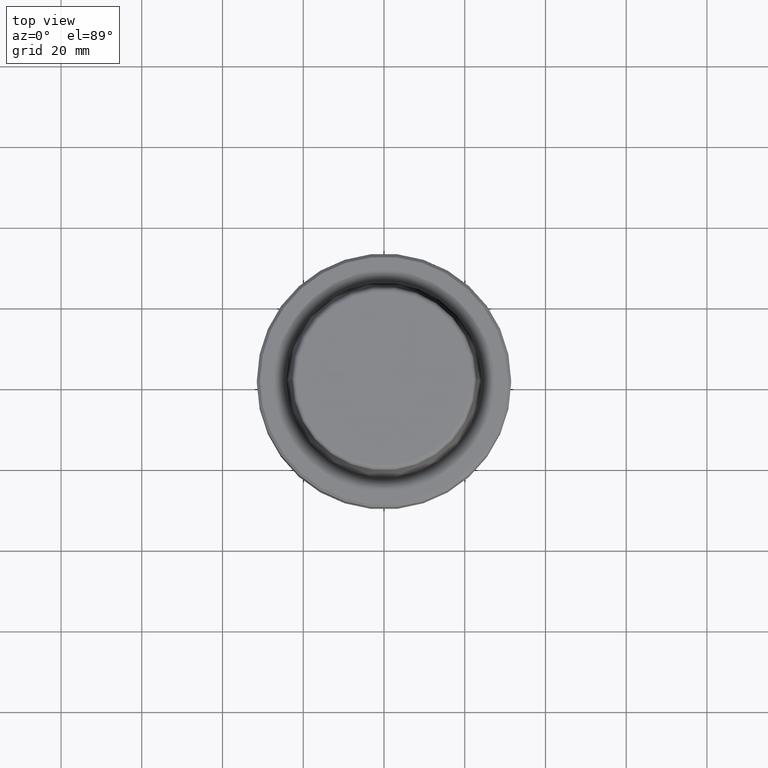
[diagram: clean part render]
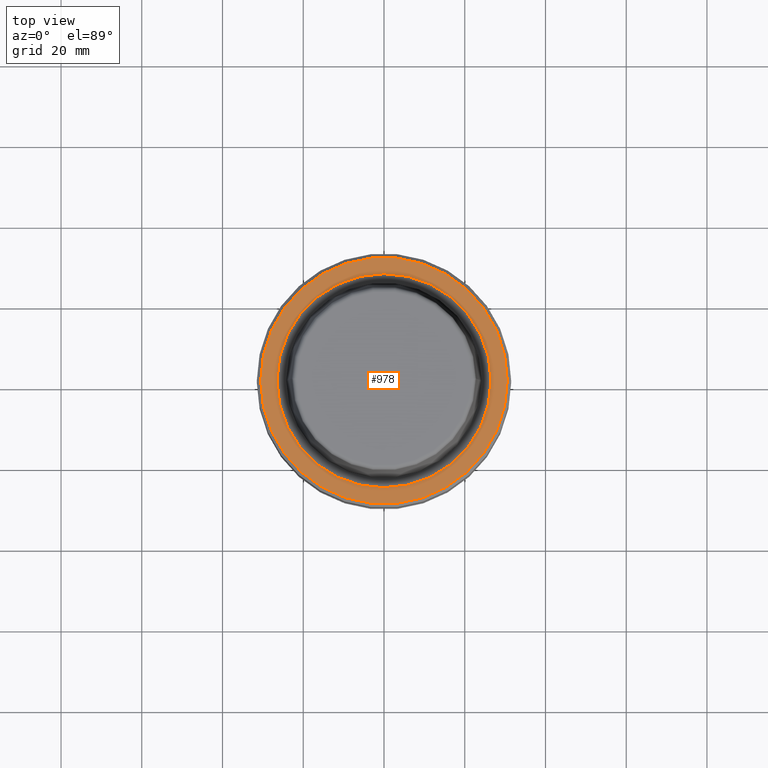
[diagram: same view with one face highlighted and labeled with its STEP entity id]
A machine part, top view. The second image highlights one B-rep face of the part: STEP entity #978.
In plain terms, the highlighted planar face has unit normal (0, 0, -1).
Its self-contained STEP definition (entity closure, byte-faithful):
#18 = DIRECTION ( 'NONE',  ( -0.0000000000000000000, -0.0000000000000000000, 1.000000000000000000 ) ) ;
#22 = CARTESIAN_POINT ( 'NONE',  ( 0.0000000000000000000, 0.0000000000000000000, 0.0000000000000000000 ) ) ;
#67 = CIRCLE ( 'NONE', #116, 26.52499999999999900 ) ;
#75 = DIRECTION ( 'NONE',  ( 1.000000000000000000, 0.0000000000000000000, 0.0000000000000000000 ) ) ;
#115 = DIRECTION ( 'NONE',  ( 1.000000000000000000, 0.0000000000000000000, 0.0000000000000000000 ) ) ;
#116 = AXIS2_PLACEMENT_3D ( 'NONE', #22, #701, #115 ) ;
#126 = ORIENTED_EDGE ( 'NONE', *, *, #405, .T. ) ;
#172 = PLANE ( 'NONE',  #552 ) ;
#196 = VERTEX_POINT ( 'NONE', #350 ) ;
#243 = CIRCLE ( 'NONE', #558, 30.53431457505076100 ) ;
#253 = DIRECTION ( 'NONE',  ( -0.0000000000000000000, -0.0000000000000000000, 1.000000000000000000 ) ) ;
#262 = CARTESIAN_POINT ( 'NONE',  ( 30.53431457505076100, 0.0000000000000000000, 0.0000000000000000000 ) ) ;
#331 = VERTEX_POINT ( 'NONE', #938 ) ;
#350 = CARTESIAN_POINT ( 'NONE',  ( -26.52499999999999900, 3.248375634738354300E-015, 0.0000000000000000000 ) ) ;
#405 = EDGE_CURVE ( 'NONE', #1159, #694, #243, .T. ) ;
#410 = CIRCLE ( 'NONE', #1090, 30.53431457505076100 ) ;
#432 = CIRCLE ( 'NONE', #727, 26.52499999999999900 ) ;
#477 = DIRECTION ( 'NONE',  ( 0.0000000000000000000, 0.0000000000000000000, -1.000000000000000000 ) ) ;
#536 = EDGE_LOOP ( 'NONE', ( #673, #126 ) ) ;
#552 = AXIS2_PLACEMENT_3D ( 'NONE', #845, #477, #1139 ) ;
#558 = AXIS2_PLACEMENT_3D ( 'NONE', #835, #253, #934 ) ;
#590 = CARTESIAN_POINT ( 'NONE',  ( 0.0000000000000000000, 0.0000000000000000000, 0.0000000000000000000 ) ) ;
#626 = ORIENTED_EDGE ( 'NONE', *, *, #776, .F. ) ;
#630 = FACE_OUTER_BOUND ( 'NONE', #536, .T. ) ;
#635 = EDGE_CURVE ( 'NONE', #196, #331, #432, .T. ) ;
#659 = DIRECTION ( 'NONE',  ( -0.0000000000000000000, -0.0000000000000000000, 1.000000000000000000 ) ) ;
#673 = ORIENTED_EDGE ( 'NONE', *, *, #893, .T. ) ;
#690 = DIRECTION ( 'NONE',  ( 1.000000000000000000, 0.0000000000000000000, 0.0000000000000000000 ) ) ;
#694 = VERTEX_POINT ( 'NONE', #262 ) ;
#701 = DIRECTION ( 'NONE',  ( -0.0000000000000000000, -0.0000000000000000000, 1.000000000000000000 ) ) ;
#712 = ORIENTED_EDGE ( 'NONE', *, *, #635, .F. ) ;
#727 = AXIS2_PLACEMENT_3D ( 'NONE', #590, #18, #690 ) ;
#730 = CARTESIAN_POINT ( 'NONE',  ( -30.53431457505076100, 3.756694181974138600E-015, 0.0000000000000000000 ) ) ;
#776 = EDGE_CURVE ( 'NONE', #331, #196, #67, .T. ) ;
#835 = CARTESIAN_POINT ( 'NONE',  ( 0.0000000000000000000, 0.0000000000000000000, 0.0000000000000000000 ) ) ;
#845 = CARTESIAN_POINT ( 'NONE',  ( 0.0000000000000000000, 26.52499999999999900, -1.111307226797642000E-015 ) ) ;
#890 = EDGE_LOOP ( 'NONE', ( #626, #712 ) ) ;
#893 = EDGE_CURVE ( 'NONE', #694, #1159, #410, .T. ) ;
#934 = DIRECTION ( 'NONE',  ( 1.000000000000000000, 0.0000000000000000000, 0.0000000000000000000 ) ) ;
#938 = CARTESIAN_POINT ( 'NONE',  ( 26.52499999999999900, 0.0000000000000000000, 0.0000000000000000000 ) ) ;
#978 = ADVANCED_FACE ( 'NONE', ( #1085, #630 ), #172, .F. ) ;
#1085 = FACE_BOUND ( 'NONE', #890, .T. ) ;
#1090 = AXIS2_PLACEMENT_3D ( 'NONE', #1246, #659, #75 ) ;
#1139 = DIRECTION ( 'NONE',  ( -1.000000000000000000, 0.0000000000000000000, -0.0000000000000000000 ) ) ;
#1159 = VERTEX_POINT ( 'NONE', #730 ) ;
#1246 = CARTESIAN_POINT ( 'NONE',  ( 0.0000000000000000000, 0.0000000000000000000, 0.0000000000000000000 ) ) ;